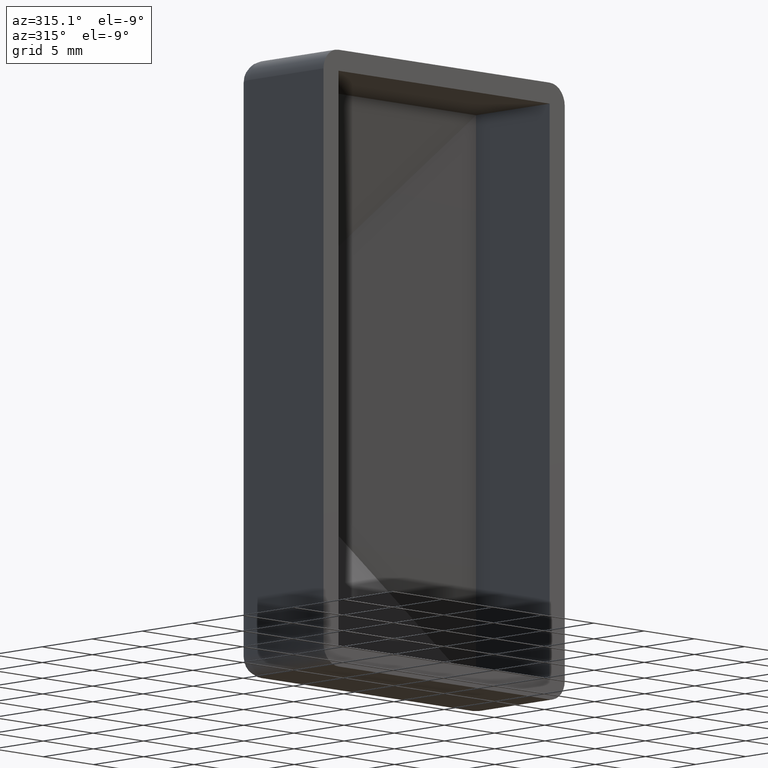
[diagram: clean part render]
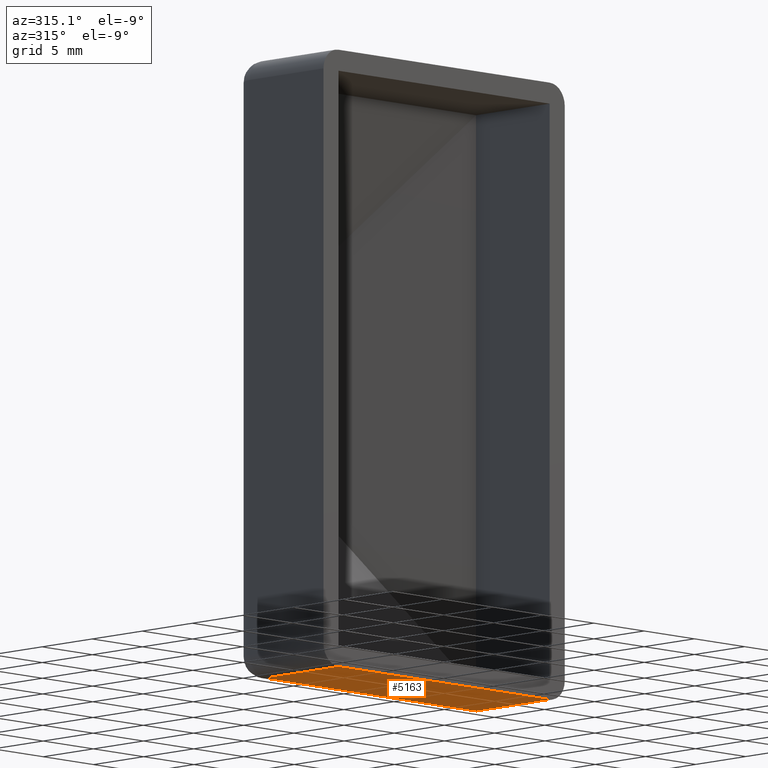
[diagram: same view with one face highlighted and labeled with its STEP entity id]
A machine part, auxiliary view. The second image highlights one B-rep face of the part: STEP entity #5163.
In plain terms, the highlighted planar face has unit normal (0, 0, 1).
Its self-contained STEP definition (entity closure, byte-faithful):
#261 = VERTEX_POINT ( 'NONE', #12917 ) ;
#497 = FACE_OUTER_BOUND ( 'NONE', #8146, .T. ) ;
#576 = EDGE_CURVE ( 'NONE', #261, #4094, #12382, .T. ) ;
#765 = ORIENTED_EDGE ( 'NONE', *, *, #7476, .T. ) ;
#1878 = VECTOR ( 'NONE', #12278, 1000.000000000000000 ) ;
#2627 = CARTESIAN_POINT ( 'NONE',  ( -10.50000000000000533, 30.00000000000000000, -22.00000000000000000 ) ) ;
#3390 = EDGE_CURVE ( 'NONE', #4094, #13981, #4773, .T. ) ;
#3602 = VECTOR ( 'NONE', #4738, 1000.000000000000000 ) ;
#3723 = CARTESIAN_POINT ( 'NONE',  ( -10.50000000000000533, 7.350000000000012967, -22.00000000000000000 ) ) ;
#4094 = VERTEX_POINT ( 'NONE', #3723 ) ;
#4738 = DIRECTION ( 'NONE',  ( -0.000000000000000000, 1.000000000000000000, -0.000000000000000000 ) ) ;
#4773 = LINE ( 'NONE', #11360, #1878 ) ;
#5040 = DIRECTION ( 'NONE',  ( 1.000000000000000000, 0.000000000000000000, -0.000000000000000000 ) ) ;
#5163 = ADVANCED_FACE ( 'NONE', ( #497 ), #9397, .F. ) ;
#5733 = DIRECTION ( 'NONE',  ( 0.000000000000000000, -1.000000000000000000, 0.000000000000000000 ) ) ;
#6142 = CARTESIAN_POINT ( 'NONE',  ( 10.49999999999999645, 0.000000000000000000, -22.00000000000000000 ) ) ;
#6455 = CARTESIAN_POINT ( 'NONE',  ( 10.49999999999999645, 7.350000000000012967, -22.00000000000000000 ) ) ;
#7211 = DIRECTION ( 'NONE',  ( -1.000000000000000000, -0.000000000000000000, -0.000000000000000000 ) ) ;
#7311 = CARTESIAN_POINT ( 'NONE',  ( -12.00000000000000533, 30.00000000000000000, -22.00000000000000000 ) ) ;
#7476 = EDGE_CURVE ( 'NONE', #13250, #261, #8520, .T. ) ;
#8146 = EDGE_LOOP ( 'NONE', ( #11443, #8275, #765, #11772 ) ) ;
#8261 = VECTOR ( 'NONE', #5733, 1000.000000000000000 ) ;
#8275 = ORIENTED_EDGE ( 'NONE', *, *, #12993, .T. ) ;
#8409 = DIRECTION ( 'NONE',  ( 0.000000000000000000, 0.000000000000000000, 1.000000000000000000 ) ) ;
#8520 = LINE ( 'NONE', #12554, #12131 ) ;
#9397 = PLANE ( 'NONE',  #12192 ) ;
#10174 = CARTESIAN_POINT ( 'NONE',  ( 10.49999999999999645, 30.00000000000000000, -22.00000000000000000 ) ) ;
#11360 = CARTESIAN_POINT ( 'NONE',  ( -12.00000000000000533, 7.350000000000012967, -22.00000000000000000 ) ) ;
#11443 = ORIENTED_EDGE ( 'NONE', *, *, #3390, .T. ) ;
#11772 = ORIENTED_EDGE ( 'NONE', *, *, #576, .T. ) ;
#12044 = LINE ( 'NONE', #10174, #8261 ) ;
#12131 = VECTOR ( 'NONE', #7211, 1000.000000000000000 ) ;
#12192 = AXIS2_PLACEMENT_3D ( 'NONE', #7311, #8409, #5040 ) ;
#12278 = DIRECTION ( 'NONE',  ( 1.000000000000000000, -0.000000000000000000, -0.000000000000000000 ) ) ;
#12382 = LINE ( 'NONE', #2627, #3602 ) ;
#12554 = CARTESIAN_POINT ( 'NONE',  ( -12.00000000000000533, 0.000000000000000000, -22.00000000000000000 ) ) ;
#12917 = CARTESIAN_POINT ( 'NONE',  ( -10.50000000000000533, 0.000000000000000000, -22.00000000000000000 ) ) ;
#12993 = EDGE_CURVE ( 'NONE', #13981, #13250, #12044, .T. ) ;
#13250 = VERTEX_POINT ( 'NONE', #6142 ) ;
#13981 = VERTEX_POINT ( 'NONE', #6455 ) ;